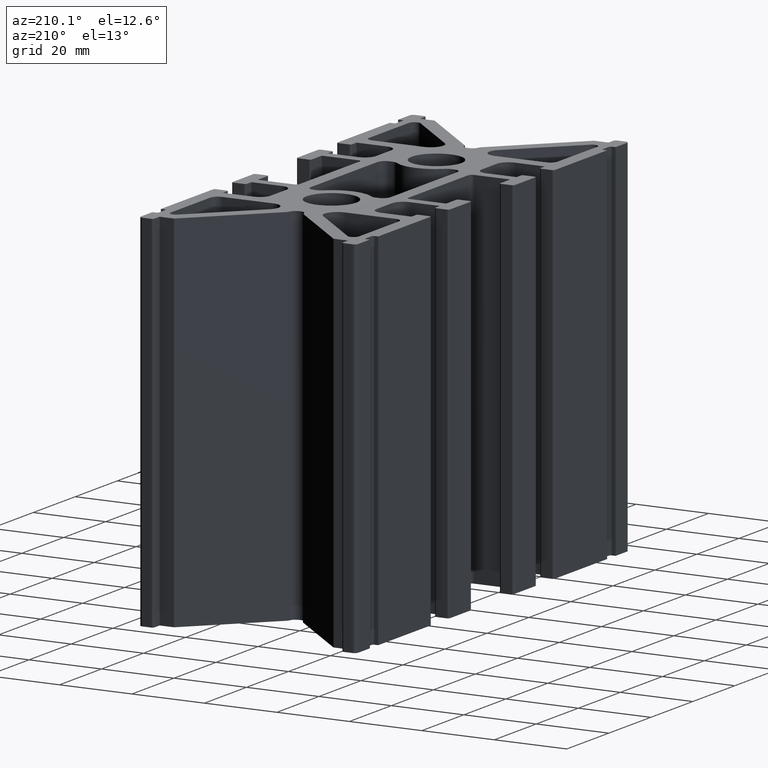
[diagram: clean part render]
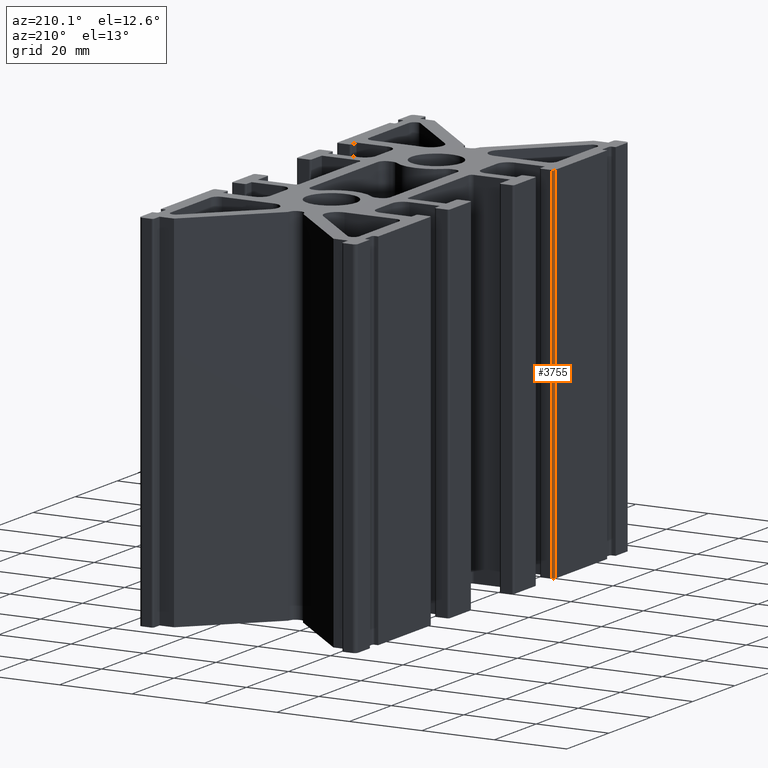
[diagram: same view with one face highlighted and labeled with its STEP entity id]
A machine part, auxiliary view. The second image highlights one B-rep face of the part: STEP entity #3755.
In plain terms, the highlighted cylindrical surface (edge-blend (fillet) strip) has radius 0.5 mm, axis along (0, 0, 1).
Its self-contained STEP definition (entity closure, byte-faithful):
#291=FACE_OUTER_BOUND('',#488,.T.);
#488=EDGE_LOOP('',(#3197,#3198,#3199,#3200));
#620=CIRCLE('',#3925,0.499999999999998);
#676=CIRCLE('',#4091,0.499999999999998);
#1032=LINE('',#6212,#1428);
#1033=LINE('',#6216,#1429);
#1428=VECTOR('',#5078,100.);
#1429=VECTOR('',#5083,100.);
#1677=VERTEX_POINT('',#5706);
#1678=VERTEX_POINT('',#5708);
#1820=VERTEX_POINT('',#6210);
#1821=VERTEX_POINT('',#6214);
#2089=EDGE_CURVE('',#1677,#1678,#620,.T.);
#2341=EDGE_CURVE('',#1677,#1820,#1032,.T.);
#2342=EDGE_CURVE('',#1821,#1820,#676,.T.);
#2343=EDGE_CURVE('',#1678,#1821,#1033,.T.);
#3197=ORIENTED_EDGE('',*,*,#2341,.T.);
#3198=ORIENTED_EDGE('',*,*,#2342,.F.);
#3199=ORIENTED_EDGE('',*,*,#2343,.F.);
#3200=ORIENTED_EDGE('',*,*,#2089,.F.);
#3588=CYLINDRICAL_SURFACE('',#4090,0.499999999999998);
#3755=ADVANCED_FACE('',(#291),#3588,.T.);
#3925=AXIS2_PLACEMENT_3D('',#5709,#4552,#4553);
#4090=AXIS2_PLACEMENT_3D('',#6213,#5079,#5080);
#4091=AXIS2_PLACEMENT_3D('',#6215,#5081,#5082);
#4552=DIRECTION('center_axis',(0.,0.,-1.));
#4553=DIRECTION('ref_axis',(0.,1.,0.));
#5078=DIRECTION('',(0.,0.,1.));
#5079=DIRECTION('center_axis',(0.,0.,1.));
#5080=DIRECTION('ref_axis',(0.,1.,0.));
#5081=DIRECTION('center_axis',(0.,0.,1.));
#5082=DIRECTION('ref_axis',(0.,1.,0.));
#5083=DIRECTION('',(0.,0.,1.));
#5706=CARTESIAN_POINT('',(-30.0000000000036,-29.6499999999997,-50.));
#5708=CARTESIAN_POINT('',(-29.5000000000036,-29.1499999999997,-50.));
#5709=CARTESIAN_POINT('Origin',(-29.5000000000036,-29.6499999999997,-50.));
#6210=CARTESIAN_POINT('',(-30.0000000000036,-29.6499999999997,50.));
#6212=CARTESIAN_POINT('',(-30.0000000000036,-29.6499999999997,0.));
#6213=CARTESIAN_POINT('Origin',(-29.5000000000036,-29.6499999999997,0.));
#6214=CARTESIAN_POINT('',(-29.5000000000036,-29.1499999999997,50.));
#6215=CARTESIAN_POINT('Origin',(-29.5000000000036,-29.6499999999997,50.));
#6216=CARTESIAN_POINT('',(-29.5000000000036,-29.1499999999997,0.));